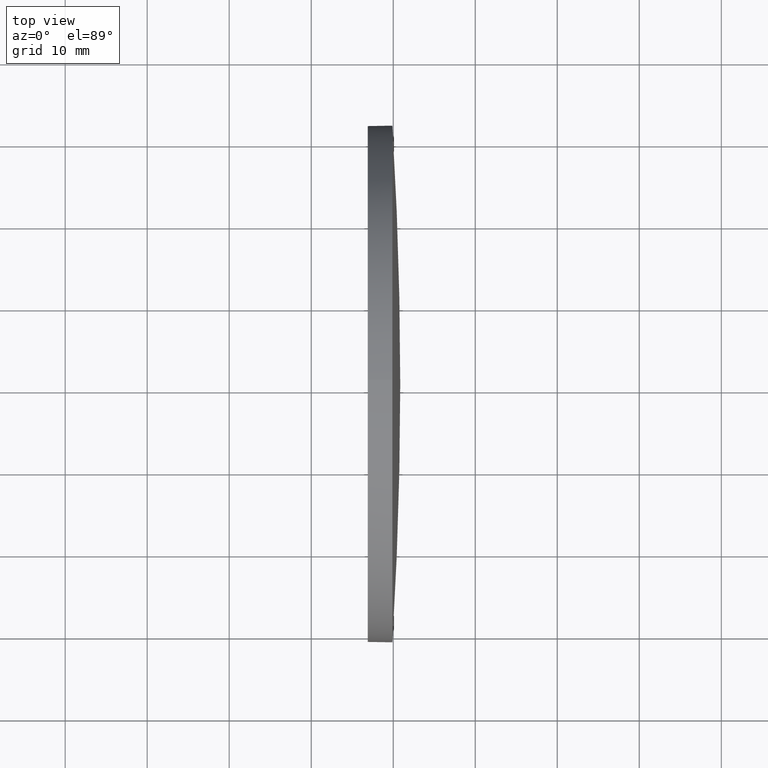
[diagram: clean part render]
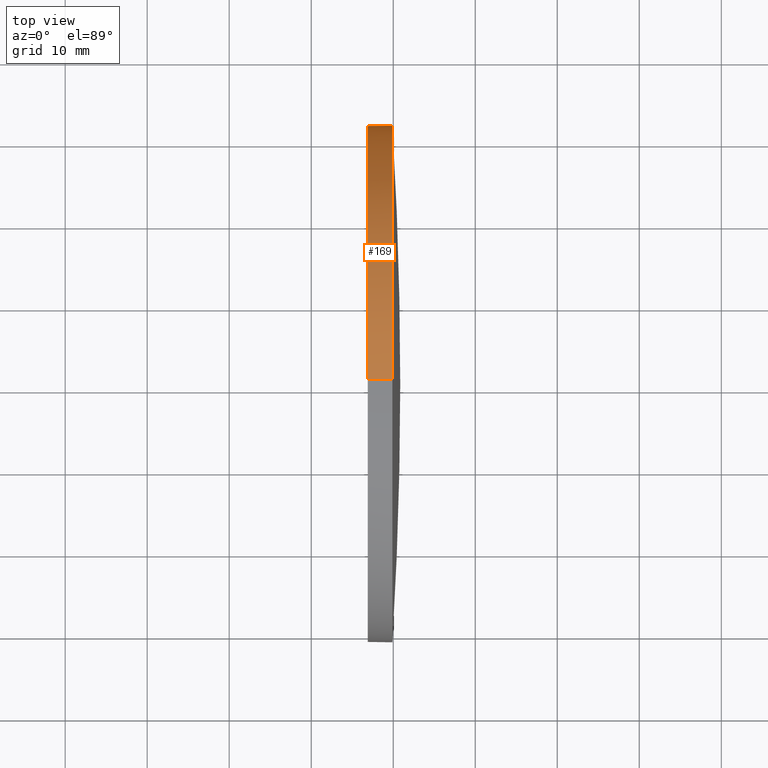
[diagram: same view with one face highlighted and labeled with its STEP entity id]
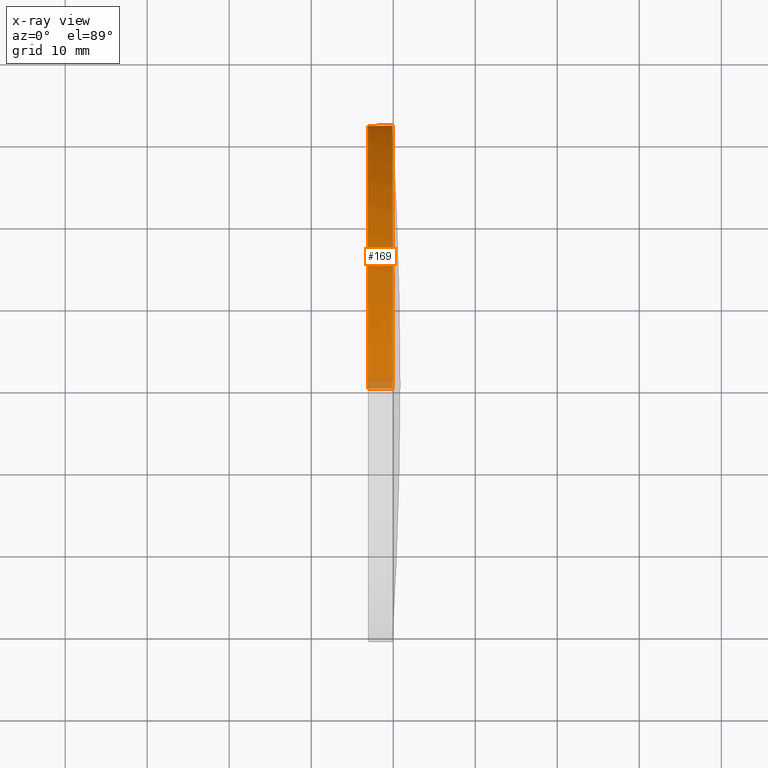
[diagram: x-ray of the same camera — body ghosted, the highlighted face saturated]
A machine part, top view. The second image highlights one B-rep face of the part: STEP entity #169.
The next image is the same camera in x-ray: the body ghosted, the highlighted face saturated — about 3% of this face is hidden behind the body in this view.
In plain terms, the highlighted cylindrical surface (partial cylindrical patch) has radius 31.5 mm, axis along (-1, -0, -0).
Its self-contained STEP definition (entity closure, byte-faithful):
#11 = LINE ( 'NONE', #47, #14 ) ;
#12 = DIRECTION ( 'NONE',  ( -1.000000000000000000, -0.0000000000000000000, -0.0000000000000000000 ) ) ;
#14 = VECTOR ( 'NONE', #99, 1000.000000000000000 ) ;
#17 = VERTEX_POINT ( 'NONE', #80 ) ;
#18 = DIRECTION ( 'NONE',  ( -1.000000000000000000, -0.0000000000000000000, -0.0000000000000000000 ) ) ;
#22 = LINE ( 'NONE', #177, #171 ) ;
#25 = AXIS2_PLACEMENT_3D ( 'NONE', #64, #18, #147 ) ;
#27 = CYLINDRICAL_SURFACE ( 'NONE', #100, 31.50000000000000000 ) ;
#30 = CARTESIAN_POINT ( 'NONE',  ( 226.8933010013870400, 130.5185814569561000, 0.0000000000000000000 ) ) ;
#34 = VERTEX_POINT ( 'NONE', #92 ) ;
#35 = VERTEX_POINT ( 'NONE', #61 ) ;
#39 = ORIENTED_EDGE ( 'NONE', *, *, #170, .T. ) ;
#40 = CIRCLE ( 'NONE', #25, 31.50000000000000000 ) ;
#41 = CARTESIAN_POINT ( 'NONE',  ( 229.8933010013870400, 130.5185814569561000, 31.50000000000000000 ) ) ;
#46 = DIRECTION ( 'NONE',  ( -1.000000000000000000, -0.0000000000000000000, -0.0000000000000000000 ) ) ;
#47 = CARTESIAN_POINT ( 'NONE',  ( 218.1236667371545400, 130.5185814569561000, -31.50000000000000000 ) ) ;
#56 = AXIS2_PLACEMENT_3D ( 'NONE', #123, #12, #79 ) ;
#60 = EDGE_CURVE ( 'NONE', #82, #34, #172, .T. ) ;
#61 = CARTESIAN_POINT ( 'NONE',  ( 226.8933010013870400, 130.5185814569561000, -31.50000000000000000 ) ) ;
#64 = CARTESIAN_POINT ( 'NONE',  ( 229.8933010013870400, 130.5185814569561000, 0.0000000000000000000 ) ) ;
#67 = EDGE_LOOP ( 'NONE', ( #39, #105, #154, #157, #91 ) ) ;
#75 = DIRECTION ( 'NONE',  ( 0.0000000000000000000, 0.0000000000000000000, 1.000000000000000000 ) ) ;
#79 = DIRECTION ( 'NONE',  ( 0.0000000000000000000, 0.0000000000000000000, 1.000000000000000000 ) ) ;
#80 = CARTESIAN_POINT ( 'NONE',  ( 226.8933010013870400, 130.5185814569561000, 31.50000000000000000 ) ) ;
#82 = VERTEX_POINT ( 'NONE', #41 ) ;
#85 = EDGE_CURVE ( 'NONE', #82, #17, #22, .T. ) ;
#91 = ORIENTED_EDGE ( 'NONE', *, *, #60, .T. ) ;
#92 = CARTESIAN_POINT ( 'NONE',  ( 229.8933010013870400, 162.0185814569561000, 3.857637417314109000E-015 ) ) ;
#96 = CARTESIAN_POINT ( 'NONE',  ( 229.8933010013870400, 130.5185814569561000, -31.50000000000000000 ) ) ;
#99 = DIRECTION ( 'NONE',  ( -1.000000000000000000, -0.0000000000000000000, -0.0000000000000000000 ) ) ;
#100 = AXIS2_PLACEMENT_3D ( 'NONE', #127, #46, #179 ) ;
#101 = VERTEX_POINT ( 'NONE', #96 ) ;
#105 = ORIENTED_EDGE ( 'NONE', *, *, #168, .T. ) ;
#123 = CARTESIAN_POINT ( 'NONE',  ( 229.8933010013870400, 130.5185814569561000, 0.0000000000000000000 ) ) ;
#124 = AXIS2_PLACEMENT_3D ( 'NONE', #30, #125, #75 ) ;
#125 = DIRECTION ( 'NONE',  ( -1.000000000000000000, -0.0000000000000000000, -0.0000000000000000000 ) ) ;
#127 = CARTESIAN_POINT ( 'NONE',  ( 218.1236667371545400, 130.5185814569561000, 0.0000000000000000000 ) ) ;
#142 = CIRCLE ( 'NONE', #124, 31.50000000000000000 ) ;
#144 = EDGE_CURVE ( 'NONE', #17, #35, #142, .T. ) ;
#147 = DIRECTION ( 'NONE',  ( 0.0000000000000000000, 0.0000000000000000000, 1.000000000000000000 ) ) ;
#154 = ORIENTED_EDGE ( 'NONE', *, *, #144, .F. ) ;
#157 = ORIENTED_EDGE ( 'NONE', *, *, #85, .F. ) ;
#161 = DIRECTION ( 'NONE',  ( -1.000000000000000000, -0.0000000000000000000, -0.0000000000000000000 ) ) ;
#167 = FACE_OUTER_BOUND ( 'NONE', #67, .T. ) ;
#168 = EDGE_CURVE ( 'NONE', #101, #35, #11, .T. ) ;
#169 = ADVANCED_FACE ( 'NONE', ( #167 ), #27, .T. ) ;
#170 = EDGE_CURVE ( 'NONE', #34, #101, #40, .T. ) ;
#171 = VECTOR ( 'NONE', #161, 1000.000000000000000 ) ;
#172 = CIRCLE ( 'NONE', #56, 31.50000000000000000 ) ;
#177 = CARTESIAN_POINT ( 'NONE',  ( 218.1236667371545400, 130.5185814569561000, 31.50000000000000000 ) ) ;
#179 = DIRECTION ( 'NONE',  ( 0.0000000000000000000, 0.0000000000000000000, 1.000000000000000000 ) ) ;